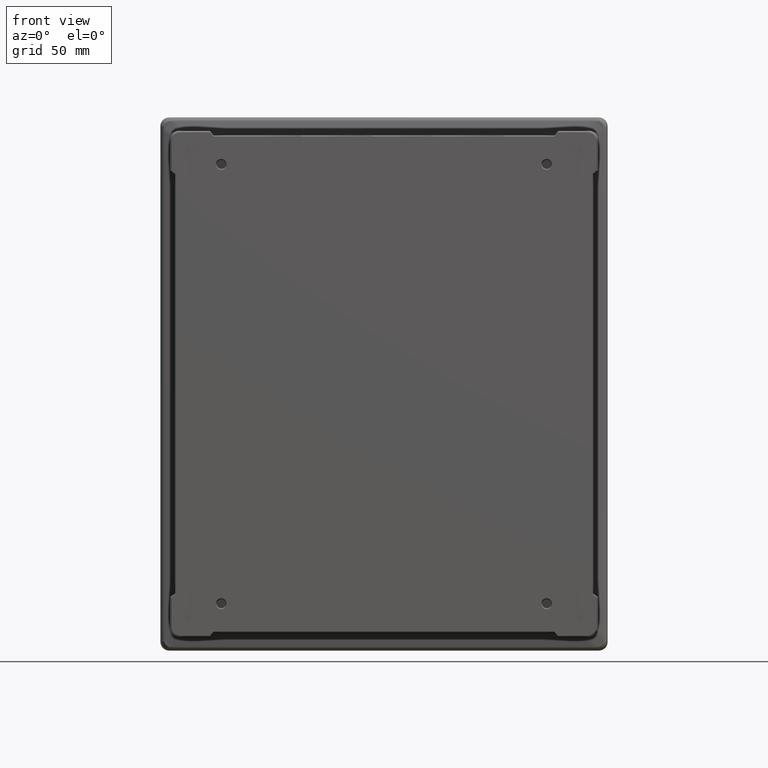
[diagram: clean part render]
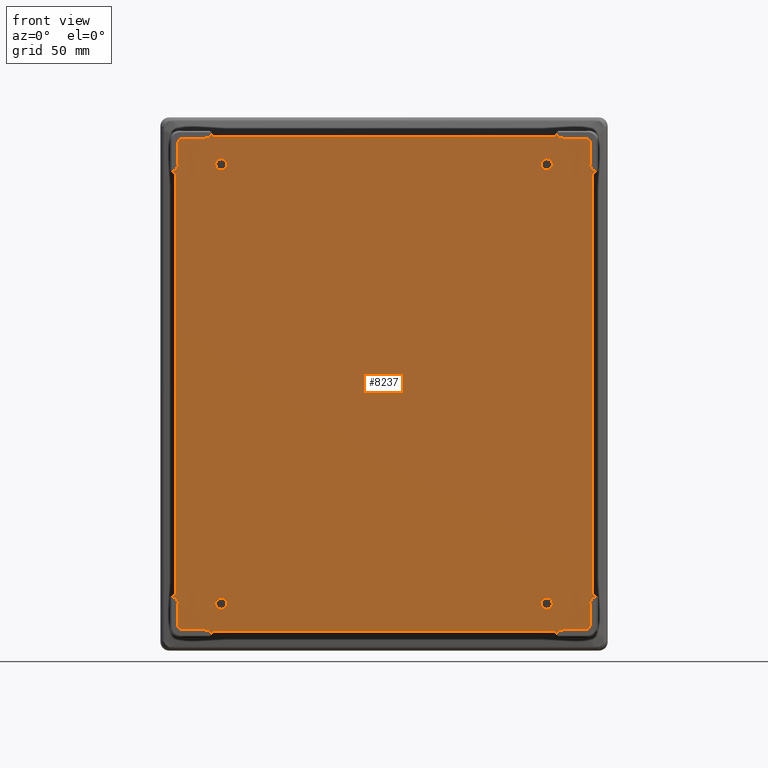
[diagram: same view with one face highlighted and labeled with its STEP entity id]
A machine part, front view. The second image highlights one B-rep face of the part: STEP entity #8237.
In plain terms, the highlighted planar face has unit normal (0, 1, 0).
Its self-contained STEP definition (entity closure, byte-faithful):
#1246=DIRECTION('',(-1.E0,0.E0,0.E0));
#1247=VECTOR('',#1246,2.125595160340E2);
#1248=CARTESIAN_POINT('',(1.062797580170E2,-1.385E2,-1.543670431109E2));
#1249=LINE('',#1248,#1247);
#1325=DIRECTION('',(9.945218911117E-1,-6.068683035329E-13,1.045285037658E-1));
#1326=VECTOR('',#1325,8.430013015493E-1);
#1327=CARTESIAN_POINT('',(-1.285246141727E2,-1.385E2,-1.365985301589E2));
#1328=LINE('',#1327,#1326);
#1329=DIRECTION('',(1.045284694585E-1,-1.840718986467E-9,-9.945218947176E-1));
#1330=VECTOR('',#1329,3.208947279573E0);
#1331=CARTESIAN_POINT('',(1.081605704039E2,-1.385E2,-1.538245189712E2));
#1332=LINE('',#1331,#1330);
#1333=DIRECTION('',(-6.416986025004E-1,1.710138128413E-9,7.669569111424E-1));
#1334=VECTOR('',#1333,3.453706655972E0);
#1335=CARTESIAN_POINT('',(1.084959967516E2,-1.385000000059E2,
-1.570158872997E2));
#1336=LINE('',#1335,#1334);
#1337=DIRECTION('',(-6.416986025004E-1,-1.710138128413E-9,-7.669569111424E-1));
#1338=VECTOR('',#1337,3.453706655972E0);
#1339=CARTESIAN_POINT('',(-1.062797580170E2,-1.385E2,-1.543670431109E2));
#1340=LINE('',#1339,#1338);
#1341=DIRECTION('',(1.045284694585E-1,1.840727843487E-9,9.945218947176E-1));
#1342=VECTOR('',#1341,3.208947279573E0);
#1343=CARTESIAN_POINT('',(-1.084959967516E2,-1.385000000059E2,
-1.570158872997E2));
#1344=LINE('',#1343,#1342);
#1345=DIRECTION('',(-6.921877179391E-1,-7.130750774532E-13,7.217175092335E-1));
#1346=VECTOR('',#1345,1.434886131694E0);
#1347=CARTESIAN_POINT('',(-1.110805488554E2,-1.385E2,-1.538245189713E2));
#1348=LINE('',#1347,#1346);
#1349=CARTESIAN_POINT('',(-1.260247093446E2,-1.385000000002E2,
-1.530246141357E2));
#1350=CARTESIAN_POINT('',(-1.263669891149E2,-1.385000000002E2,
-1.530246141358E2));
#1351=CARTESIAN_POINT('',(-1.269969810811E2,-1.384999999999E2,
-1.528950723542E2));
#1352=CARTESIAN_POINT('',(-1.278441197918E2,-1.385000000001E2,
-1.523380709294E2));
#1353=CARTESIAN_POINT('',(-1.283967735165E2,-1.384999999999E2,
-1.514914328686E2));
#1354=CARTESIAN_POINT('',(-1.285246141727E2,-1.385000000002E2,
-1.508646353628E2));
#1355=CARTESIAN_POINT('',(-1.285246141729E2,-1.385000000002E2,
-1.505247093652E2));
#1357=DIRECTION('',(-6.921876986233E-1,4.443094338261E-13,7.217175277590E-1));
#1358=VECTOR('',#1357,2.366826290113E0);
#1359=CARTESIAN_POINT('',(-1.276862309241E2,-1.385E2,-1.365104124942E2));
#1360=LINE('',#1359,#1358);
#1361=DIRECTION('',(-9.945218962489E-1,-2.376579778575E-9,-1.045284548892E-1));
#1362=VECTOR('',#1361,3.217722219971E0);
#1363=CARTESIAN_POINT('',(-1.293245189669E2,-1.385E2,-1.326605704633E2));
#1364=LINE('',#1363,#1362);
#1365=DIRECTION('',(7.683324385632E-1,2.221665570548E-9,6.400509853532E-1));
#1366=VECTOR('',#1365,3.442090322877E0);
#1367=CARTESIAN_POINT('',(-1.325246141707E2,-1.385000000076E2,
-1.329969139953E2));
#1368=LINE('',#1367,#1366);
#1369=DIRECTION('',(-7.683324403661E-1,-2.221665575762E-9,6.400509831889E-1));
#1370=VECTOR('',#1369,3.442090314800E0);
#1371=CARTESIAN_POINT('',(-1.298799445192E2,-1.385E2,1.307938007429E2));
#1372=LINE('',#1371,#1370);
#1373=DIRECTION('',(9.945218932342E-1,2.376579771370E-9,-1.045284835723E-1));
#1374=VECTOR('',#1373,3.217722229725E0);
#1375=CARTESIAN_POINT('',(-1.325246141707E2,-1.385000000076E2,
1.329969140331E2));
#1376=LINE('',#1375,#1374);
#1377=DIRECTION('',(6.921876986233E-1,-4.323010707497E-13,7.217175277590E-1));
#1378=VECTOR('',#1377,2.366826290113E0);
#1379=CARTESIAN_POINT('',(-1.293245189668E2,-1.385E2,1.348022325259E2));
#1380=LINE('',#1379,#1378);
#1381=CARTESIAN_POINT('',(-1.285246141729E2,-1.385000000002E2,
1.505247094150E2));
#1382=CARTESIAN_POINT('',(-1.285246141730E2,-1.385000000002E2,
1.508669887948E2));
#1383=CARTESIAN_POINT('',(-1.283950726793E2,-1.384999999999E2,
1.514969804531E2));
#1384=CARTESIAN_POINT('',(-1.278380709873E2,-1.385000000001E2,
1.523441193472E2));
#1385=CARTESIAN_POINT('',(-1.269914335883E2,-1.384999999999E2,
1.528967736598E2));
#1386=CARTESIAN_POINT('',(-1.263646356745E2,-1.385000000002E2,
1.530246141863E2));
#1387=CARTESIAN_POINT('',(-1.260247093445E2,-1.385000000002E2,
1.530246141862E2));
#1389=DIRECTION('',(6.921876810578E-1,7.328826794439E-13,7.217175446058E-1));
#1390=VECTOR('',#1389,1.434886208148E0);
#1391=CARTESIAN_POINT('',(-1.120737594124E2,-1.385E2,1.527889364709E2));
#1392=LINE('',#1391,#1390);
#1393=DIRECTION('',(-1.045284681707E-1,-1.835275277964E-9,9.945218948529E-1));
#1394=VECTOR('',#1393,3.217722165680E0);
#1395=CARTESIAN_POINT('',(-1.081605704039E2,-1.385E2,1.538245190220E2));
#1396=LINE('',#1395,#1394);
#1397=DIRECTION('',(6.400509727440E-1,1.707316500187E-9,-7.683324490671E-1));
#1398=VECTOR('',#1397,3.458881784007E0);
#1399=CARTESIAN_POINT('',(-1.084969139729E2,-1.385000000059E2,
1.570246141673E2));
#1400=LINE('',#1399,#1398);
#1401=DIRECTION('',(6.400509727440E-1,-1.707316500187E-9,7.683324490671E-1));
#1402=VECTOR('',#1401,3.458881784007E0);
#1403=CARTESIAN_POINT('',(1.062830533224E2,-1.385E2,1.543670430552E2));
#1404=LINE('',#1403,#1402);
#1405=DIRECTION('',(-1.045284681707E-1,1.835275277964E-9,-9.945218948529E-1));
#1406=VECTOR('',#1405,3.217722165680E0);
#1407=CARTESIAN_POINT('',(1.084969139729E2,-1.385000000059E2,1.570246141673E2));
#1408=LINE('',#1407,#1406);
#1409=DIRECTION('',(6.921876810578E-1,-7.130750394589E-13,-7.217175446058E-1));
#1410=VECTOR('',#1409,1.434886208148E0);
#1411=CARTESIAN_POINT('',(1.110805488554E2,-1.385E2,1.538245190218E2));
#1412=LINE('',#1411,#1410);
#1413=CARTESIAN_POINT('',(1.260247093451E2,-1.385000000001E2,1.530246141860E2));
#1414=CARTESIAN_POINT('',(1.263669890165E2,-1.385000000001E2,1.530246141858E2));
#1415=CARTESIAN_POINT('',(1.269969808645E2,-1.385E2,1.528950727024E2));
#1416=CARTESIAN_POINT('',(1.278441191481E2,-1.385E2,1.523380711883E2));
#1417=CARTESIAN_POINT('',(1.283967736486E2,-1.385E2,1.514914331510E2));
#1418=CARTESIAN_POINT('',(1.285246141727E2,-1.385000000001E2,1.508646354420E2));
#1419=CARTESIAN_POINT('',(1.285246141727E2,-1.385000000001E2,1.505247094152E2));
#1421=DIRECTION('',(6.921876986233E-1,4.443094338261E-13,-7.217175277590E-1));
#1422=VECTOR('',#1421,2.366826290113E0);
#1423=CARTESIAN_POINT('',(1.276862309241E2,-1.385E2,1.365104125447E2));
#1424=LINE('',#1423,#1422);
#1425=DIRECTION('',(9.945218932342E-1,-2.376579771370E-9,1.045284835723E-1));
#1426=VECTOR('',#1425,3.217722229725E0);
#1427=CARTESIAN_POINT('',(1.293245189669E2,-1.385E2,1.326605704079E2));
#1428=LINE('',#1427,#1426);
#1429=DIRECTION('',(-7.683324305422E-1,2.221665547355E-9,-6.400509949817E-1));
#1430=VECTOR('',#1429,3.442090358811E0);
#1431=CARTESIAN_POINT('',(1.325246141707E2,-1.385000000076E2,1.329969140331E2));
#1432=LINE('',#1431,#1430);
#1433=DIRECTION('',(7.669613678848E-1,-2.225200367538E-9,-6.416932757730E-1));
#1434=VECTOR('',#1433,3.436865140371E0);
#1435=CARTESIAN_POINT('',(1.298799445190E2,-1.385E2,-1.307905835439E2));
#1436=LINE('',#1435,#1434);
#1437=DIRECTION('',(-9.945218953073E-1,2.383477148279E-9,1.045284638477E-1));
#1438=VECTOR('',#1437,3.208947290936E0);
#1439=CARTESIAN_POINT('',(1.325158873083E2,-1.385000000076E2,
-1.329959967942E2));
#1440=LINE('',#1439,#1438);
#1441=DIRECTION('',(-6.921876986233E-1,-4.323010707497E-13,-7.217175277590E-1));
#1442=VECTOR('',#1441,2.366826290113E0);
#1443=CARTESIAN_POINT('',(1.293245189668E2,-1.385E2,-1.348022324755E2));
#1444=LINE('',#1443,#1442);
#1445=CARTESIAN_POINT('',(1.285246141727E2,-1.385000000001E2,
-1.505247093648E2));
#1446=CARTESIAN_POINT('',(1.285246141727E2,-1.385000000001E2,
-1.508669888507E2));
#1447=CARTESIAN_POINT('',(1.283950724824E2,-1.385E2,-1.514969804854E2));
#1448=CARTESIAN_POINT('',(1.278380711129E2,-1.385E2,-1.523441195980E2));
#1449=CARTESIAN_POINT('',(1.269914335526E2,-1.385E2,-1.528967733498E2));
#1450=CARTESIAN_POINT('',(1.263646356667E2,-1.385000000001E2,
-1.530246141354E2));
#1451=CARTESIAN_POINT('',(1.260247093449E2,-1.385000000001E2,
-1.530246141355E2));
#1453=DIRECTION('',(-6.921877179391E-1,7.328827184936E-13,-7.217175092335E-1));
#1454=VECTOR('',#1453,1.434886131694E0);
#1455=CARTESIAN_POINT('',(1.120737594124E2,-1.385E2,-1.527889365263E2));
#1456=LINE('',#1455,#1454);
#1457=CARTESIAN_POINT('',(-1.015E2,-1.385E2,-1.37E2));
#1458=DIRECTION('',(0.E0,-1.E0,0.E0));
#1459=DIRECTION('',(-3.545190575887E-8,0.E0,-1.E0));
#1460=AXIS2_PLACEMENT_3D('',#1457,#1458,#1459);
#1462=CARTESIAN_POINT('',(-1.015E2,-1.385E2,-1.37E2));
#1463=DIRECTION('',(0.E0,-1.E0,0.E0));
#1464=DIRECTION('',(-3.545190575887E-8,0.E0,1.E0));
#1465=AXIS2_PLACEMENT_3D('',#1462,#1463,#1464);
#1467=CARTESIAN_POINT('',(1.015E2,-1.385E2,-1.37E2));
#1468=DIRECTION('',(0.E0,-1.E0,0.E0));
#1469=DIRECTION('',(3.545190575887E-8,0.E0,1.E0));
#1470=AXIS2_PLACEMENT_3D('',#1467,#1468,#1469);
#1472=CARTESIAN_POINT('',(1.015E2,-1.385E2,-1.37E2));
#1473=DIRECTION('',(0.E0,-1.E0,0.E0));
#1474=DIRECTION('',(3.545190575887E-8,0.E0,-1.E0));
#1475=AXIS2_PLACEMENT_3D('',#1472,#1473,#1474);
#1477=CARTESIAN_POINT('',(-1.015E2,-1.385E2,1.37E2));
#1478=DIRECTION('',(0.E0,-1.E0,0.E0));
#1479=DIRECTION('',(-3.545190575887E-8,0.E0,-1.E0));
#1480=AXIS2_PLACEMENT_3D('',#1477,#1478,#1479);
#1482=CARTESIAN_POINT('',(-1.015E2,-1.385E2,1.37E2));
#1483=DIRECTION('',(0.E0,-1.E0,0.E0));
#1484=DIRECTION('',(-3.545190575887E-8,0.E0,1.E0));
#1485=AXIS2_PLACEMENT_3D('',#1482,#1483,#1484);
#1487=CARTESIAN_POINT('',(1.015E2,-1.385E2,1.37E2));
#1488=DIRECTION('',(0.E0,-1.E0,0.E0));
#1489=DIRECTION('',(3.545190575887E-8,0.E0,1.E0));
#1490=AXIS2_PLACEMENT_3D('',#1487,#1488,#1489);
#1492=CARTESIAN_POINT('',(1.015E2,-1.385E2,1.37E2));
#1493=DIRECTION('',(0.E0,-1.E0,0.E0));
#1494=DIRECTION('',(3.545190575887E-8,0.E0,-1.E0));
#1495=AXIS2_PLACEMENT_3D('',#1492,#1493,#1494);
#1501=DIRECTION('',(1.E0,-6.813473774314E-14,-4.215593559508E-11));
#1502=VECTOR('',#1501,2.919978451562E0);
#1503=CARTESIAN_POINT('',(1.081605704039E2,-1.385E2,-1.538245189712E2));
#1504=LINE('',#1503,#1502);
#1557=DIRECTION('',(-1.214416941221E-10,9.289606150748E-14,1.E0));
#1558=VECTOR('',#1557,2.141662012192E0);
#1559=CARTESIAN_POINT('',(1.293245189668E2,-1.385E2,-1.348022324755E2));
#1560=LINE('',#1559,#1558);
#1643=DIRECTION('',(-6.892893288164E-13,0.E0,-1.E0));
#1644=VECTOR('',#1643,2.615843842180E2);
#1645=CARTESIAN_POINT('',(1.298799445192E2,-1.385E2,1.307938006741E2));
#1646=LINE('',#1645,#1644);
#1691=DIRECTION('',(-9.945218911117E-1,-6.068683035329E-13,-1.045285037658E-1));
#1692=VECTOR('',#1691,8.430013015493E-1);
#1693=CARTESIAN_POINT('',(1.285246141727E2,-1.385E2,1.365985302094E2));
#1694=LINE('',#1693,#1692);
#1703=DIRECTION('',(-1.244938938117E-12,4.628723789589E-12,-1.E0));
#1704=VECTOR('',#1703,1.392617920584E1);
#1705=CARTESIAN_POINT('',(1.285246141727E2,-1.385000000001E2,1.505247094152E2));
#1706=LINE('',#1705,#1704);
#1715=DIRECTION('',(1.E0,-4.363408936748E-12,-3.532769349631E-12));
#1716=VECTOR('',#1715,1.392617919683E1);
#1717=CARTESIAN_POINT('',(1.120985301483E2,-1.385E2,1.530246141860E2));
#1718=LINE('',#1717,#1716);
#1727=DIRECTION('',(1.045285042381E-1,2.158830415746E-12,9.945218910621E-1));
#1728=VECTOR('',#1727,2.369758949178E-1);
#1729=CARTESIAN_POINT('',(1.120737594124E2,-1.385E2,1.527889364709E2));
#1730=LINE('',#1729,#1728);
#1747=DIRECTION('',(-1.E0,-1.849371453067E-13,7.125920214688E-11));
#1748=VECTOR('',#1747,2.919978451500E0);
#1749=CARTESIAN_POINT('',(1.110805488554E2,-1.385E2,1.538245190218E2));
#1750=LINE('',#1749,#1748);
#1798=DIRECTION('',(1.E0,0.E0,0.E0));
#1799=VECTOR('',#1798,2.125661066449E2);
#1800=CARTESIAN_POINT('',(-1.062830533224E2,-1.385E2,1.543670430552E2));
#1801=LINE('',#1800,#1799);
#1993=DIRECTION('',(1.045285042383E-1,-2.158830415746E-12,-9.945218910621E-1));
#1994=VECTOR('',#1993,2.369758949178E-1);
#1995=CARTESIAN_POINT('',(-1.120985301483E2,-1.385E2,1.530246141860E2));
#1996=LINE('',#1995,#1994);
#2005=DIRECTION('',(1.E0,1.662503704410E-11,-1.161058626858E-11));
#2006=VECTOR('',#2005,1.392617919623E1);
#2007=CARTESIAN_POINT('',(-1.260247093445E2,-1.385000000002E2,
1.530246141862E2));
#2008=LINE('',#2007,#2006);
#2017=DIRECTION('',(-1.639237631331E-11,-1.665360940197E-11,1.E0));
#2018=VECTOR('',#2017,1.392617920561E1);
#2019=CARTESIAN_POINT('',(-1.285246141727E2,-1.385E2,1.365985302094E2));
#2020=LINE('',#2019,#2018);
#2029=DIRECTION('',(-9.945218911117E-1,6.068683035329E-13,1.045285037658E-1));
#2030=VECTOR('',#2029,8.430013015493E-1);
#2031=CARTESIAN_POINT('',(-1.276862309241E2,-1.385E2,1.365104125447E2));
#2032=LINE('',#2031,#2030);
#2049=DIRECTION('',(-3.319043404929E-11,-2.521464401985E-13,-1.E0));
#2050=VECTOR('',#2049,2.141662118064E0);
#2051=CARTESIAN_POINT('',(-1.293245189668E2,-1.385E2,1.348022325259E2));
#2052=LINE('',#2051,#2050);
#2159=DIRECTION('',(0.E0,0.E0,1.E0));
#2160=VECTOR('',#2159,2.615876014353E2);
#2161=CARTESIAN_POINT('',(-1.298799445192E2,-1.385E2,-1.307938006924E2));
#2162=LINE('',#2161,#2160);
#2191=DIRECTION('',(3.317716482506E-11,2.521464526704E-13,-1.E0));
#2192=VECTOR('',#2191,2.141662012130E0);
#2193=CARTESIAN_POINT('',(-1.293245189669E2,-1.385E2,-1.326605704633E2));
#2194=LINE('',#2193,#2192);
#2269=DIRECTION('',(-1.E0,1.849371453067E-13,-7.125920214687E-11));
#2270=VECTOR('',#2269,2.919978451500E0);
#2271=CARTESIAN_POINT('',(-1.081605704039E2,-1.385E2,1.538245190220E2));
#2272=LINE('',#2271,#2270);
#2517=DIRECTION('',(-3.317716318401E-11,2.521464401985E-13,1.E0));
#2518=VECTOR('',#2517,2.141662118064E0);
#2519=CARTESIAN_POINT('',(1.293245189669E2,-1.385E2,1.326605704079E2));
#2520=LINE('',#2519,#2518);
#2578=DIRECTION('',(9.945218911117E-1,6.068683035329E-13,-1.045285037658E-1));
#2579=VECTOR('',#2578,8.430013015493E-1);
#2580=CARTESIAN_POINT('',(1.276862309241E2,-1.385E2,-1.365104124942E2));
#2581=LINE('',#2580,#2579);
#2582=DIRECTION('',(1.244938938117E-12,-4.628723789589E-12,-1.E0));
#2583=VECTOR('',#2582,1.392617920584E1);
#2584=CARTESIAN_POINT('',(1.285246141727E2,-1.385E2,-1.365985301589E2));
#2585=LINE('',#2584,#2583);
#2610=DIRECTION('',(-1.E0,4.457289578091E-12,-3.534810233175E-12));
#2611=VECTOR('',#2610,1.392617919668E1);
#2612=CARTESIAN_POINT('',(1.260247093449E2,-1.385000000001E2,
-1.530246141355E2));
#2613=LINE('',#2612,#2611);
#2614=DIRECTION('',(-1.045285507088E-1,-2.158831375504E-12,9.945218861778E-1));
#2615=VECTOR('',#2614,2.369757895647E-1);
#2616=CARTESIAN_POINT('',(1.120985301483E2,-1.385E2,-1.530246141356E2));
#2617=LINE('',#2616,#2615);
#2634=DIRECTION('',(1.E0,6.813473774314E-14,4.214620206111E-11));
#2635=VECTOR('',#2634,2.919978451562E0);
#2636=CARTESIAN_POINT('',(-1.110805488554E2,-1.385E2,-1.538245189713E2));
#2637=LINE('',#2636,#2635);
#2646=DIRECTION('',(-1.045285507087E-1,2.158831375504E-12,-9.945218861778E-1));
#2647=VECTOR('',#2646,2.369757895647E-1);
#2648=CARTESIAN_POINT('',(-1.120737594124E2,-1.385E2,-1.527889365263E2));
#2649=LINE('',#2648,#2647);
#2650=DIRECTION('',(-1.E0,-1.653115640262E-11,-1.160854538495E-11));
#2651=VECTOR('',#2650,1.392617919638E1);
#2652=CARTESIAN_POINT('',(-1.120985301483E2,-1.385E2,-1.530246141356E2));
#2653=LINE('',#2652,#2651);
#2678=DIRECTION('',(1.638625366199E-11,1.622502386509E-11,1.E0));
#2679=VECTOR('',#2678,1.392617920630E1);
#2680=CARTESIAN_POINT('',(-1.285246141729E2,-1.385000000002E2,
-1.505247093652E2));
#2681=LINE('',#2680,#2679);
#4976=CARTESIAN_POINT('',(-1.015000000408E2,-1.385E2,-1.404500000373E2));
#4978=VERTEX_POINT('',#4976);
#4982=CARTESIAN_POINT('',(-1.015000000417E2,-1.385E2,-1.335500000113E2));
#4983=VERTEX_POINT('',#4982);
#5000=CARTESIAN_POINT('',(1.015000000408E2,-1.385E2,-1.404500000373E2));
#5002=VERTEX_POINT('',#5000);
#5006=CARTESIAN_POINT('',(1.015000000398E2,-1.385E2,-1.335500000113E2));
#5007=VERTEX_POINT('',#5006);
#5196=CARTESIAN_POINT('',(1.081605704039E2,-1.385E2,-1.538245189712E2));
#5197=CARTESIAN_POINT('',(1.110805488554E2,-1.385E2,-1.538245189713E2));
#5198=VERTEX_POINT('',#5196);
#5199=VERTEX_POINT('',#5197);
#5200=CARTESIAN_POINT('',(1.120737594124E2,-1.385E2,-1.527889365263E2));
#5201=VERTEX_POINT('',#5200);
#5202=CARTESIAN_POINT('',(1.120985301483E2,-1.385E2,-1.530246141356E2));
#5203=VERTEX_POINT('',#5202);
#5204=CARTESIAN_POINT('',(1.260247093449E2,-1.385000000001E2,
-1.530246141355E2));
#5205=VERTEX_POINT('',#5204);
#5206=VERTEX_POINT('',#1445);
#5207=CARTESIAN_POINT('',(1.285246141727E2,-1.385E2,-1.365985301589E2));
#5208=VERTEX_POINT('',#5207);
#5209=CARTESIAN_POINT('',(1.276862309241E2,-1.385E2,-1.365104124942E2));
#5210=VERTEX_POINT('',#5209);
#5211=CARTESIAN_POINT('',(1.293245189668E2,-1.385E2,-1.348022324755E2));
#5212=VERTEX_POINT('',#5211);
#5213=CARTESIAN_POINT('',(1.293245189666E2,-1.385E2,-1.326605704633E2));
#5214=VERTEX_POINT('',#5213);
#5215=CARTESIAN_POINT('',(1.325158873083E2,-1.385000000076E2,
-1.329959967942E2));
#5216=VERTEX_POINT('',#5215);
#5217=CARTESIAN_POINT('',(1.298799445190E2,-1.385E2,-1.307905835439E2));
#5218=VERTEX_POINT('',#5217);
#5219=CARTESIAN_POINT('',(1.298799445192E2,-1.385E2,1.307938006741E2));
#5220=VERTEX_POINT('',#5219);
#5221=CARTESIAN_POINT('',(1.325246141707E2,-1.385000000076E2,1.329969140331E2));
#5222=VERTEX_POINT('',#5221);
#5223=CARTESIAN_POINT('',(1.293245189669E2,-1.385E2,1.326605704079E2));
#5224=VERTEX_POINT('',#5223);
#5225=CARTESIAN_POINT('',(1.293245189668E2,-1.385E2,1.348022325259E2));
#5226=VERTEX_POINT('',#5225);
#5227=CARTESIAN_POINT('',(1.276862309241E2,-1.385E2,1.365104125447E2));
#5228=VERTEX_POINT('',#5227);
#5229=CARTESIAN_POINT('',(1.285246141727E2,-1.385E2,1.365985302094E2));
#5230=VERTEX_POINT('',#5229);
#5231=CARTESIAN_POINT('',(1.285246141727E2,-1.385000000001E2,1.505247094152E2));
#5232=VERTEX_POINT('',#5231);
#5233=VERTEX_POINT('',#1413);
#5234=CARTESIAN_POINT('',(1.120985301483E2,-1.385E2,1.530246141860E2));
#5235=VERTEX_POINT('',#5234);
#5236=CARTESIAN_POINT('',(1.120737594124E2,-1.385E2,1.527889364709E2));
#5237=VERTEX_POINT('',#5236);
#5238=CARTESIAN_POINT('',(1.110805488554E2,-1.385E2,1.538245190218E2));
#5239=VERTEX_POINT('',#5238);
#5240=CARTESIAN_POINT('',(1.081605704039E2,-1.385E2,1.538245190220E2));
#5241=VERTEX_POINT('',#5240);
#5242=CARTESIAN_POINT('',(1.084969139729E2,-1.385000000059E2,1.570246141673E2));
#5243=VERTEX_POINT('',#5242);
#5244=CARTESIAN_POINT('',(1.062830533224E2,-1.385E2,1.543670430552E2));
#5245=VERTEX_POINT('',#5244);
#5246=CARTESIAN_POINT('',(-1.062830533224E2,-1.385E2,1.543670430552E2));
#5247=VERTEX_POINT('',#5246);
#5248=CARTESIAN_POINT('',(-1.084969139729E2,-1.385000000059E2,
1.570246141673E2));
#5249=VERTEX_POINT('',#5248);
#5250=CARTESIAN_POINT('',(-1.081605704039E2,-1.385E2,1.538245190220E2));
#5251=VERTEX_POINT('',#5250);
#5252=CARTESIAN_POINT('',(-1.110805488554E2,-1.385E2,1.538245190218E2));
#5253=VERTEX_POINT('',#5252);
#5254=CARTESIAN_POINT('',(-1.120737594124E2,-1.385E2,1.527889364709E2));
#5255=VERTEX_POINT('',#5254);
#5256=CARTESIAN_POINT('',(-1.120985301483E2,-1.385E2,1.530246141860E2));
#5257=VERTEX_POINT('',#5256);
#5258=CARTESIAN_POINT('',(-1.260247093445E2,-1.385000000002E2,
1.530246141862E2));
#5259=VERTEX_POINT('',#5258);
#5260=VERTEX_POINT('',#1381);
#5261=CARTESIAN_POINT('',(-1.285246141727E2,-1.385E2,1.365985302094E2));
#5262=VERTEX_POINT('',#5261);
#5263=CARTESIAN_POINT('',(-1.276862309241E2,-1.385E2,1.365104125447E2));
#5264=VERTEX_POINT('',#5263);
#5265=CARTESIAN_POINT('',(-1.293245189668E2,-1.385E2,1.348022325259E2));
#5266=VERTEX_POINT('',#5265);
#5267=CARTESIAN_POINT('',(-1.293245189669E2,-1.385E2,1.326605704079E2));
#5268=VERTEX_POINT('',#5267);
#5269=CARTESIAN_POINT('',(-1.325246141707E2,-1.385000000076E2,
1.329969140331E2));
#5270=VERTEX_POINT('',#5269);
#5271=CARTESIAN_POINT('',(-1.298799445192E2,-1.385E2,1.307938007429E2));
#5272=VERTEX_POINT('',#5271);
#5273=CARTESIAN_POINT('',(-1.298799445192E2,-1.385E2,-1.307938006924E2));
#5274=VERTEX_POINT('',#5273);
#5275=CARTESIAN_POINT('',(-1.325246141707E2,-1.385000000076E2,
-1.329969139953E2));
#5276=VERTEX_POINT('',#5275);
#5277=CARTESIAN_POINT('',(-1.293245189669E2,-1.385E2,-1.326605704633E2));
#5278=VERTEX_POINT('',#5277);
#5279=CARTESIAN_POINT('',(-1.293245189668E2,-1.385E2,-1.348022324755E2));
#5280=VERTEX_POINT('',#5279);
#5281=CARTESIAN_POINT('',(-1.276862309241E2,-1.385E2,-1.365104124942E2));
#5282=VERTEX_POINT('',#5281);
#5283=CARTESIAN_POINT('',(-1.285246141727E2,-1.385E2,-1.365985301589E2));
#5284=VERTEX_POINT('',#5283);
#5285=CARTESIAN_POINT('',(-1.285246141729E2,-1.385000000002E2,
-1.505247093652E2));
#5286=VERTEX_POINT('',#5285);
#5287=VERTEX_POINT('',#1349);
#5288=CARTESIAN_POINT('',(-1.120985301483E2,-1.385E2,-1.530246141356E2));
#5289=VERTEX_POINT('',#5288);
#5290=CARTESIAN_POINT('',(-1.120737594124E2,-1.385E2,-1.527889365263E2));
#5291=VERTEX_POINT('',#5290);
#5292=CARTESIAN_POINT('',(-1.110805488554E2,-1.385E2,-1.538245189713E2));
#5293=VERTEX_POINT('',#5292);
#5294=CARTESIAN_POINT('',(-1.081605704039E2,-1.385E2,-1.538245189712E2));
#5295=VERTEX_POINT('',#5294);
#5296=CARTESIAN_POINT('',(-1.084959967516E2,-1.385000000059E2,
-1.570158872997E2));
#5297=VERTEX_POINT('',#5296);
#5298=CARTESIAN_POINT('',(-1.062797580170E2,-1.385E2,-1.543670431109E2));
#5299=VERTEX_POINT('',#5298);
#5300=CARTESIAN_POINT('',(1.062797580170E2,-1.385E2,-1.543670431109E2));
#5301=VERTEX_POINT('',#5300);
#5302=CARTESIAN_POINT('',(1.084959967516E2,-1.385000000059E2,
-1.570158872997E2));
#5303=VERTEX_POINT('',#5302);
#5939=CARTESIAN_POINT('',(1.015000000408E2,-1.385E2,1.404499999818E2));
#5941=VERTEX_POINT('',#5939);
#5945=CARTESIAN_POINT('',(1.015000000417E2,-1.385E2,1.335499999558E2));
#5946=VERTEX_POINT('',#5945);
#5963=CARTESIAN_POINT('',(-1.015000000408E2,-1.385E2,1.404499999818E2));
#5965=VERTEX_POINT('',#5963);
#5969=CARTESIAN_POINT('',(-1.015000000398E2,-1.385E2,1.335499999558E2));
#5970=VERTEX_POINT('',#5969);
#8098=CARTESIAN_POINT('',(0.E0,-1.385E2,8.726868000011E-3));
#8099=DIRECTION('',(0.E0,1.E0,0.E0));
#8100=DIRECTION('',(0.E0,0.E0,1.E0));
#8101=AXIS2_PLACEMENT_3D('',#8098,#8099,#8100);
#8102=PLANE('',#8101);
#8104=ORIENTED_EDGE('',*,*,#8103,.F.);
#8106=ORIENTED_EDGE('',*,*,#8105,.T.);
#8108=ORIENTED_EDGE('',*,*,#8107,.T.);
#8109=ORIENTED_EDGE('',*,*,#7994,.T.);
#8110=ORIENTED_EDGE('',*,*,#8010,.T.);
#8112=ORIENTED_EDGE('',*,*,#8111,.T.);
#8114=ORIENTED_EDGE('',*,*,#8113,.F.);
#8116=ORIENTED_EDGE('',*,*,#8115,.T.);
#8118=ORIENTED_EDGE('',*,*,#8117,.T.);
#8120=ORIENTED_EDGE('',*,*,#8119,.T.);
#8122=ORIENTED_EDGE('',*,*,#8121,.T.);
#8124=ORIENTED_EDGE('',*,*,#8123,.T.);
#8125=ORIENTED_EDGE('',*,*,#8089,.T.);
#8126=ORIENTED_EDGE('',*,*,#8079,.T.);
#8128=ORIENTED_EDGE('',*,*,#8127,.F.);
#8130=ORIENTED_EDGE('',*,*,#8129,.T.);
#8132=ORIENTED_EDGE('',*,*,#8131,.T.);
#8134=ORIENTED_EDGE('',*,*,#8133,.T.);
#8136=ORIENTED_EDGE('',*,*,#8135,.T.);
#8138=ORIENTED_EDGE('',*,*,#8137,.T.);
#8140=ORIENTED_EDGE('',*,*,#8139,.F.);
#8142=ORIENTED_EDGE('',*,*,#8141,.T.);
#8144=ORIENTED_EDGE('',*,*,#8143,.T.);
#8146=ORIENTED_EDGE('',*,*,#8145,.T.);
#8148=ORIENTED_EDGE('',*,*,#8147,.T.);
#8150=ORIENTED_EDGE('',*,*,#8149,.T.);
#8152=ORIENTED_EDGE('',*,*,#8151,.T.);
#8154=ORIENTED_EDGE('',*,*,#8153,.T.);
#8156=ORIENTED_EDGE('',*,*,#8155,.F.);
#8158=ORIENTED_EDGE('',*,*,#8157,.T.);
#8160=ORIENTED_EDGE('',*,*,#8159,.T.);
#8162=ORIENTED_EDGE('',*,*,#8161,.T.);
#8164=ORIENTED_EDGE('',*,*,#8163,.T.);
#8166=ORIENTED_EDGE('',*,*,#8165,.T.);
#8168=ORIENTED_EDGE('',*,*,#8167,.F.);
#8170=ORIENTED_EDGE('',*,*,#8169,.T.);
#8172=ORIENTED_EDGE('',*,*,#8171,.T.);
#8174=ORIENTED_EDGE('',*,*,#8173,.T.);
#8176=ORIENTED_EDGE('',*,*,#8175,.T.);
#8178=ORIENTED_EDGE('',*,*,#8177,.T.);
#8180=ORIENTED_EDGE('',*,*,#8179,.T.);
#8182=ORIENTED_EDGE('',*,*,#8181,.T.);
#8184=ORIENTED_EDGE('',*,*,#8183,.F.);
#8186=ORIENTED_EDGE('',*,*,#8185,.T.);
#8188=ORIENTED_EDGE('',*,*,#8187,.T.);
#8190=ORIENTED_EDGE('',*,*,#8189,.T.);
#8192=ORIENTED_EDGE('',*,*,#8191,.T.);
#8194=ORIENTED_EDGE('',*,*,#8193,.T.);
#8196=ORIENTED_EDGE('',*,*,#8195,.F.);
#8198=ORIENTED_EDGE('',*,*,#8197,.T.);
#8200=ORIENTED_EDGE('',*,*,#8199,.T.);
#8202=ORIENTED_EDGE('',*,*,#8201,.T.);
#8204=ORIENTED_EDGE('',*,*,#8203,.T.);
#8206=ORIENTED_EDGE('',*,*,#8205,.T.);
#8208=ORIENTED_EDGE('',*,*,#8207,.T.);
#8210=ORIENTED_EDGE('',*,*,#8209,.T.);
#8211=EDGE_LOOP('',(#8104,#8106,#8108,#8109,#8110,#8112,#8114,#8116,#8118,#8120,
#8122,#8124,#8125,#8126,#8128,#8130,#8132,#8134,#8136,#8138,#8140,#8142,#8144,
#8146,#8148,#8150,#8152,#8154,#8156,#8158,#8160,#8162,#8164,#8166,#8168,#8170,
#8172,#8174,#8176,#8178,#8180,#8182,#8184,#8186,#8188,#8190,#8192,#8194,#8196,
#8198,#8200,#8202,#8204,#8206,#8208,#8210));
#8212=FACE_OUTER_BOUND('',#8211,.F.);
#8214=ORIENTED_EDGE('',*,*,#8213,.T.);
#8216=ORIENTED_EDGE('',*,*,#8215,.T.);
#8217=EDGE_LOOP('',(#8214,#8216));
#8218=FACE_BOUND('',#8217,.F.);
#8220=ORIENTED_EDGE('',*,*,#8219,.T.);
#8222=ORIENTED_EDGE('',*,*,#8221,.T.);
#8223=EDGE_LOOP('',(#8220,#8222));
#8224=FACE_BOUND('',#8223,.F.);
#8226=ORIENTED_EDGE('',*,*,#8225,.T.);
#8228=ORIENTED_EDGE('',*,*,#8227,.T.);
#8229=EDGE_LOOP('',(#8226,#8228));
#8230=FACE_BOUND('',#8229,.F.);
#8232=ORIENTED_EDGE('',*,*,#8231,.T.);
#8234=ORIENTED_EDGE('',*,*,#8233,.T.);
#8235=EDGE_LOOP('',(#8232,#8234));
#8236=FACE_BOUND('',#8235,.F.);
#8237=ADVANCED_FACE('',(#8212,#8218,#8224,#8230,#8236),#8102,.F.);
#1356=B_SPLINE_CURVE_WITH_KNOTS('',3,(#1349,#1350,#1351,#1352,#1353,#1354,
#1355),.UNSPECIFIED.,.F.,.F.,(4,1,1,1,4),(0.E0,2.5E-1,5.E-1,7.5E-1,1.E0),
.UNSPECIFIED.);
#1388=B_SPLINE_CURVE_WITH_KNOTS('',3,(#1381,#1382,#1383,#1384,#1385,#1386,
#1387),.UNSPECIFIED.,.F.,.F.,(4,1,1,1,4),(0.E0,2.5E-1,5.E-1,7.5E-1,1.E0),
.UNSPECIFIED.);
#1420=B_SPLINE_CURVE_WITH_KNOTS('',3,(#1413,#1414,#1415,#1416,#1417,#1418,
#1419),.UNSPECIFIED.,.F.,.F.,(4,1,1,1,4),(0.E0,2.5E-1,5.E-1,7.5E-1,1.E0),
.UNSPECIFIED.);
#1452=B_SPLINE_CURVE_WITH_KNOTS('',3,(#1445,#1446,#1447,#1448,#1449,#1450,
#1451),.UNSPECIFIED.,.F.,.F.,(4,1,1,1,4),(0.E0,2.5E-1,5.E-1,7.5E-1,1.E0),
.UNSPECIFIED.);
#1461=CIRCLE('',#1460,3.45E0);
#1466=CIRCLE('',#1465,3.45E0);
#1471=CIRCLE('',#1470,3.45E0);
#1476=CIRCLE('',#1475,3.45E0);
#1481=CIRCLE('',#1480,3.45E0);
#1486=CIRCLE('',#1485,3.45E0);
#1491=CIRCLE('',#1490,3.45E0);
#1496=CIRCLE('',#1495,3.45E0);
#7994=EDGE_CURVE('',#5301,#5299,#1249,.T.);
#8010=EDGE_CURVE('',#5299,#5297,#1340,.T.);
#8079=EDGE_CURVE('',#5282,#5280,#1360,.T.);
#8089=EDGE_CURVE('',#5284,#5282,#1328,.T.);
#8103=EDGE_CURVE('',#5198,#5199,#1504,.T.);
#8105=EDGE_CURVE('',#5198,#5303,#1332,.T.);
#8107=EDGE_CURVE('',#5303,#5301,#1336,.T.);
#8111=EDGE_CURVE('',#5297,#5295,#1344,.T.);
#8113=EDGE_CURVE('',#5293,#5295,#2637,.T.);
#8115=EDGE_CURVE('',#5293,#5291,#1348,.T.);
#8117=EDGE_CURVE('',#5291,#5289,#2649,.T.);
#8119=EDGE_CURVE('',#5289,#5287,#2653,.T.);
#8121=EDGE_CURVE('',#5287,#5286,#1356,.T.);
#8123=EDGE_CURVE('',#5286,#5284,#2681,.T.);
#8127=EDGE_CURVE('',#5278,#5280,#2194,.T.);
#8129=EDGE_CURVE('',#5278,#5276,#1364,.T.);
#8131=EDGE_CURVE('',#5276,#5274,#1368,.T.);
#8133=EDGE_CURVE('',#5274,#5272,#2162,.T.);
#8135=EDGE_CURVE('',#5272,#5270,#1372,.T.);
#8137=EDGE_CURVE('',#5270,#5268,#1376,.T.);
#8139=EDGE_CURVE('',#5266,#5268,#2052,.T.);
#8141=EDGE_CURVE('',#5266,#5264,#1380,.T.);
#8143=EDGE_CURVE('',#5264,#5262,#2032,.T.);
#8145=EDGE_CURVE('',#5262,#5260,#2020,.T.);
#8147=EDGE_CURVE('',#5260,#5259,#1388,.T.);
#8149=EDGE_CURVE('',#5259,#5257,#2008,.T.);
#8151=EDGE_CURVE('',#5257,#5255,#1996,.T.);
#8153=EDGE_CURVE('',#5255,#5253,#1392,.T.);
#8155=EDGE_CURVE('',#5251,#5253,#2272,.T.);
#8157=EDGE_CURVE('',#5251,#5249,#1396,.T.);
#8159=EDGE_CURVE('',#5249,#5247,#1400,.T.);
#8161=EDGE_CURVE('',#5247,#5245,#1801,.T.);
#8163=EDGE_CURVE('',#5245,#5243,#1404,.T.);
#8165=EDGE_CURVE('',#5243,#5241,#1408,.T.);
#8167=EDGE_CURVE('',#5239,#5241,#1750,.T.);
#8169=EDGE_CURVE('',#5239,#5237,#1412,.T.);
#8171=EDGE_CURVE('',#5237,#5235,#1730,.T.);
#8173=EDGE_CURVE('',#5235,#5233,#1718,.T.);
#8175=EDGE_CURVE('',#5233,#5232,#1420,.T.);
#8177=EDGE_CURVE('',#5232,#5230,#1706,.T.);
#8179=EDGE_CURVE('',#5230,#5228,#1694,.T.);
#8181=EDGE_CURVE('',#5228,#5226,#1424,.T.);
#8183=EDGE_CURVE('',#5224,#5226,#2520,.T.);
#8185=EDGE_CURVE('',#5224,#5222,#1428,.T.);
#8187=EDGE_CURVE('',#5222,#5220,#1432,.T.);
#8189=EDGE_CURVE('',#5220,#5218,#1646,.T.);
#8191=EDGE_CURVE('',#5218,#5216,#1436,.T.);
#8193=EDGE_CURVE('',#5216,#5214,#1440,.T.);
#8195=EDGE_CURVE('',#5212,#5214,#1560,.T.);
#8197=EDGE_CURVE('',#5212,#5210,#1444,.T.);
#8199=EDGE_CURVE('',#5210,#5208,#2581,.T.);
#8201=EDGE_CURVE('',#5208,#5206,#2585,.T.);
#8203=EDGE_CURVE('',#5206,#5205,#1452,.T.);
#8205=EDGE_CURVE('',#5205,#5203,#2613,.T.);
#8207=EDGE_CURVE('',#5203,#5201,#2617,.T.);
#8209=EDGE_CURVE('',#5201,#5199,#1456,.T.);
#8213=EDGE_CURVE('',#4978,#4983,#1461,.T.);
#8215=EDGE_CURVE('',#4983,#4978,#1466,.T.);
#8219=EDGE_CURVE('',#5007,#5002,#1471,.T.);
#8221=EDGE_CURVE('',#5002,#5007,#1476,.T.);
#8225=EDGE_CURVE('',#5970,#5965,#1481,.T.);
#8227=EDGE_CURVE('',#5965,#5970,#1486,.T.);
#8231=EDGE_CURVE('',#5941,#5946,#1491,.T.);
#8233=EDGE_CURVE('',#5946,#5941,#1496,.T.);